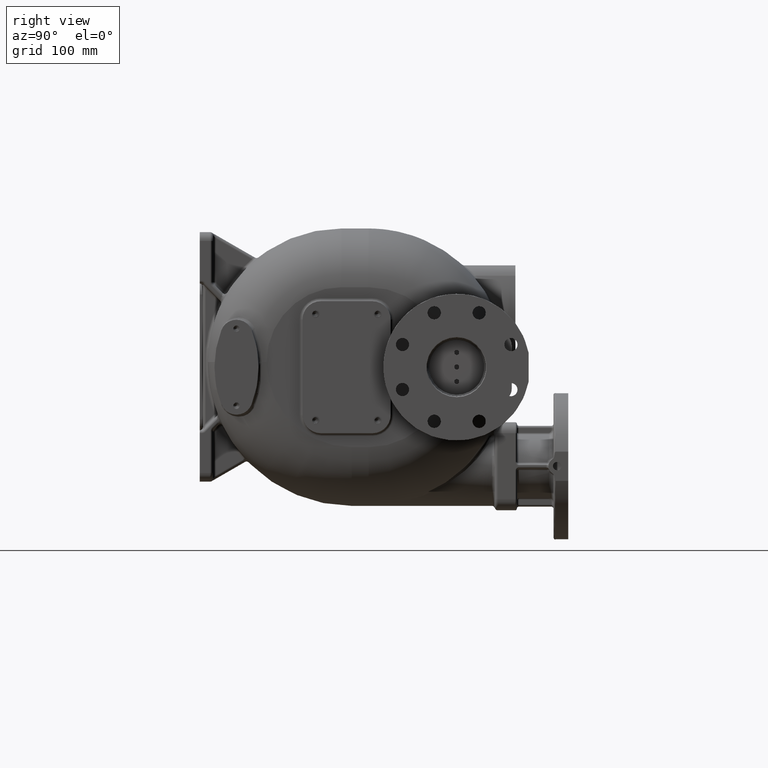
[diagram: clean part render]
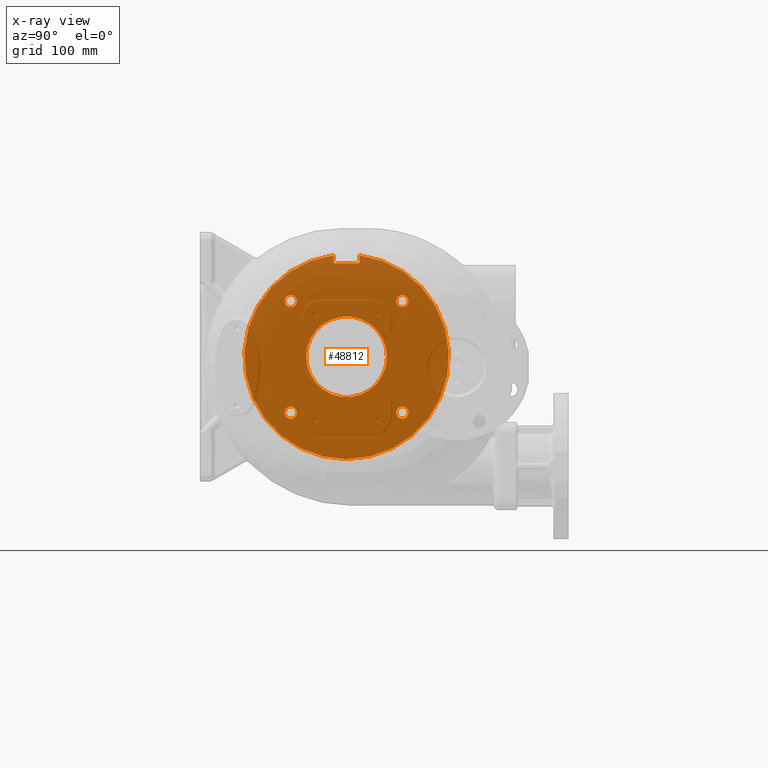
[diagram: x-ray — body ghosted, one internal face saturated and labeled with its STEP entity id]
A machine part, right view, then the same camera in x-ray: the body is ghosted and one INTERNAL B-rep face — a face not visible from any outside direction — is saturated and labeled: STEP entity #48812.
In plain terms, the highlighted planar face has unit normal (-1, 0, 0).
Its self-contained STEP definition (entity closure, byte-faithful):
#117=CARTESIAN_POINT('',(-4.4E1,1.239860210224E2,-7.601397897755E1));
#118=DIRECTION('',(-1.E0,0.E0,0.E0));
#119=DIRECTION('',(0.E0,1.E0,0.E0));
#120=AXIS2_PLACEMENT_3D('',#117,#118,#119);
#122=CARTESIAN_POINT('',(-4.4E1,1.239860210224E2,-7.601397897755E1));
#123=DIRECTION('',(-1.E0,0.E0,0.E0));
#124=DIRECTION('',(0.E0,-1.E0,0.E0));
#125=AXIS2_PLACEMENT_3D('',#122,#123,#124);
#127=CARTESIAN_POINT('',(-4.4E1,1.239860210224E2,7.601397897755E1));
#128=DIRECTION('',(-1.E0,0.E0,0.E0));
#129=DIRECTION('',(0.E0,0.E0,-1.E0));
#130=AXIS2_PLACEMENT_3D('',#127,#128,#129);
#132=CARTESIAN_POINT('',(-4.4E1,1.239860210224E2,7.601397897755E1));
#133=DIRECTION('',(-1.E0,0.E0,0.E0));
#134=DIRECTION('',(0.E0,0.E0,1.E0));
#135=AXIS2_PLACEMENT_3D('',#132,#133,#134);
#137=CARTESIAN_POINT('',(-4.4E1,2.760139789776E2,7.601397897755E1));
#138=DIRECTION('',(-1.E0,0.E0,0.E0));
#139=DIRECTION('',(0.E0,-1.E0,0.E0));
#140=AXIS2_PLACEMENT_3D('',#137,#138,#139);
#142=CARTESIAN_POINT('',(-4.4E1,2.760139789776E2,7.601397897755E1));
#143=DIRECTION('',(-1.E0,0.E0,0.E0));
#144=DIRECTION('',(0.E0,1.E0,0.E0));
#145=AXIS2_PLACEMENT_3D('',#142,#143,#144);
#147=CARTESIAN_POINT('',(-4.4E1,2.760139789776E2,-7.601397897755E1));
#148=DIRECTION('',(-1.E0,0.E0,0.E0));
#149=DIRECTION('',(0.E0,0.E0,1.E0));
#150=AXIS2_PLACEMENT_3D('',#147,#148,#149);
#152=CARTESIAN_POINT('',(-4.4E1,2.760139789776E2,-7.601397897755E1));
#153=DIRECTION('',(-1.E0,0.E0,0.E0));
#154=DIRECTION('',(0.E0,0.E0,-1.E0));
#155=AXIS2_PLACEMENT_3D('',#152,#153,#154);
#198=DIRECTION('',(0.E0,0.E0,-1.E0));
#199=VECTOR('',#198,8.485506485283E0);
#200=CARTESIAN_POINT('',(-4.4E1,2.175E2,1.379855064853E2));
#201=LINE('',#200,#199);
#354=DIRECTION('',(0.E0,0.E0,1.E0));
#355=VECTOR('',#354,8.485506485283E0);
#356=CARTESIAN_POINT('',(-4.4E1,1.825E2,1.295E2));
#357=LINE('',#356,#355);
#403=CARTESIAN_POINT('',(-4.4E1,1.795E2,1.379855064853E2));
#404=DIRECTION('',(-1.E0,0.E0,0.E0));
#405=DIRECTION('',(0.E0,9.906663756214E-1,1.363089586677E-1));
#406=AXIS2_PLACEMENT_3D('',#403,#404,#405);
#408=CARTESIAN_POINT('',(-4.4E1,2.E2,0.E0));
#409=DIRECTION('',(-1.E0,0.E0,0.E0));
#410=DIRECTION('',(0.E0,1.256487517788E-1,9.920747911203E-1));
#411=AXIS2_PLACEMENT_3D('',#408,#409,#410);
#11649=CARTESIAN_POINT('',(-4.4E1,2.E2,0.E0));
#11650=DIRECTION('',(-1.E0,0.E0,0.E0));
#11651=DIRECTION('',(0.E0,-1.E0,0.E0));
#11652=AXIS2_PLACEMENT_3D('',#11649,#11650,#11651);
#11762=CARTESIAN_POINT('',(-4.4E1,2.E2,0.E0));
#11763=DIRECTION('',(1.E0,0.E0,0.E0));
#11764=DIRECTION('',(0.E0,-1.E0,0.E0));
#11765=AXIS2_PLACEMENT_3D('',#11762,#11763,#11764);
#42332=CARTESIAN_POINT('',(-4.4E1,2.205E2,1.379855064853E2));
#42333=DIRECTION('',(1.E0,0.E0,0.E0));
#42334=DIRECTION('',(0.E0,-9.906663756214E-1,1.363089586677E-1));
#42335=AXIS2_PLACEMENT_3D('',#42332,#42333,#42334);
#42341=CARTESIAN_POINT('',(-4.4E1,1.845E2,1.295E2));
#42342=DIRECTION('',(1.E0,0.E0,0.E0));
#42343=DIRECTION('',(0.E0,-1.E0,1.421085471520E-14));
#42344=AXIS2_PLACEMENT_3D('',#42341,#42342,#42343);
#42356=DIRECTION('',(0.E0,-1.E0,0.E0));
#42357=VECTOR('',#42356,3.1E1);
#42358=CARTESIAN_POINT('',(-4.4E1,2.155E2,1.275E2));
#42359=LINE('',#42358,#42357);
#42372=CARTESIAN_POINT('',(-4.4E1,2.155E2,1.295E2));
#42373=DIRECTION('',(1.E0,0.E0,0.E0));
#42374=DIRECTION('',(0.E0,-2.131628207280E-13,-1.E0));
#42375=AXIS2_PLACEMENT_3D('',#42372,#42373,#42374);
#46974=CARTESIAN_POINT('',(-4.4E1,1.45E2,0.E0));
#46976=VERTEX_POINT('',#46974);
#46978=CARTESIAN_POINT('',(-4.4E1,2.55E2,-1.200608190966E-14));
#46980=VERTEX_POINT('',#46978);
#46982=CARTESIAN_POINT('',(-4.4E1,2.175E2,1.379855064853E2));
#46983=CARTESIAN_POINT('',(-4.4E1,2.175E2,1.295E2));
#46984=VERTEX_POINT('',#46982);
#46985=VERTEX_POINT('',#46983);
#46986=CARTESIAN_POINT('',(-4.4E1,2.155E2,1.275E2));
#46987=CARTESIAN_POINT('',(-4.4E1,1.845E2,1.275E2));
#46988=VERTEX_POINT('',#46986);
#46989=VERTEX_POINT('',#46987);
#46990=CARTESIAN_POINT('',(-4.4E1,1.825E2,1.295E2));
#46991=CARTESIAN_POINT('',(-4.4E1,1.825E2,1.379855064853E2));
#46992=VERTEX_POINT('',#46990);
#46993=VERTEX_POINT('',#46991);
#47008=CARTESIAN_POINT('',(-4.4E1,2.175280008731E2,1.383944333613E2));
#47009=VERTEX_POINT('',#47008);
#47010=CARTESIAN_POINT('',(-4.4E1,1.824719991269E2,1.383944333613E2));
#47011=VERTEX_POINT('',#47010);
#47034=CARTESIAN_POINT('',(-4.4E1,1.322360210224E2,-7.601397897755E1));
#47035=CARTESIAN_POINT('',(-4.4E1,1.157360210224E2,-7.601397897755E1));
#47036=VERTEX_POINT('',#47034);
#47037=VERTEX_POINT('',#47035);
#47042=CARTESIAN_POINT('',(-4.4E1,1.239860210224E2,6.776397897755E1));
#47043=VERTEX_POINT('',#47042);
#47044=CARTESIAN_POINT('',(-4.4E1,1.239860210224E2,8.426397897755E1));
#47045=VERTEX_POINT('',#47044);
#47050=CARTESIAN_POINT('',(-4.4E1,2.677639789776E2,7.601397897755E1));
#47051=VERTEX_POINT('',#47050);
#47052=CARTESIAN_POINT('',(-4.4E1,2.842639789776E2,7.601397897755E1));
#47053=VERTEX_POINT('',#47052);
#47058=CARTESIAN_POINT('',(-4.4E1,2.760139789776E2,-6.776397897755E1));
#47059=VERTEX_POINT('',#47058);
#47060=CARTESIAN_POINT('',(-4.4E1,2.760139789776E2,-8.426397897755E1));
#47061=VERTEX_POINT('',#47060);
#48761=CARTESIAN_POINT('',(-4.4E1,2.E2,0.E0));
#48762=DIRECTION('',(-1.E0,0.E0,0.E0));
#48763=DIRECTION('',(0.E0,1.E0,0.E0));
#48764=AXIS2_PLACEMENT_3D('',#48761,#48762,#48763);
#48765=PLANE('',#48764);
#48767=ORIENTED_EDGE('',*,*,#48766,.T.);
#48769=ORIENTED_EDGE('',*,*,#48768,.F.);
#48771=ORIENTED_EDGE('',*,*,#48770,.T.);
#48773=ORIENTED_EDGE('',*,*,#48772,.F.);
#48775=ORIENTED_EDGE('',*,*,#48774,.T.);
#48777=ORIENTED_EDGE('',*,*,#48776,.F.);
#48779=ORIENTED_EDGE('',*,*,#48778,.F.);
#48781=ORIENTED_EDGE('',*,*,#48780,.T.);
#48782=EDGE_LOOP('',(#48767,#48769,#48771,#48773,#48775,#48777,#48779,#48781));
#48783=FACE_OUTER_BOUND('',#48782,.F.);
#48785=ORIENTED_EDGE('',*,*,#48784,.T.);
#48787=ORIENTED_EDGE('',*,*,#48786,.F.);
#48788=EDGE_LOOP('',(#48785,#48787));
#48789=FACE_BOUND('',#48788,.F.);
#48791=ORIENTED_EDGE('',*,*,#48790,.T.);
#48793=ORIENTED_EDGE('',*,*,#48792,.T.);
#48794=EDGE_LOOP('',(#48791,#48793));
#48795=FACE_BOUND('',#48794,.F.);
#48797=ORIENTED_EDGE('',*,*,#48796,.T.);
#48799=ORIENTED_EDGE('',*,*,#48798,.T.);
#48800=EDGE_LOOP('',(#48797,#48799));
#48801=FACE_BOUND('',#48800,.F.);
#48803=ORIENTED_EDGE('',*,*,#48802,.T.);
#48805=ORIENTED_EDGE('',*,*,#48804,.T.);
#48806=EDGE_LOOP('',(#48803,#48805));
#48807=FACE_BOUND('',#48806,.F.);
#48808=ORIENTED_EDGE('',*,*,#48743,.T.);
#48809=ORIENTED_EDGE('',*,*,#48754,.T.);
#48810=EDGE_LOOP('',(#48808,#48809));
#48811=FACE_BOUND('',#48810,.F.);
#48812=ADVANCED_FACE('',(#48783,#48789,#48795,#48801,#48807,#48811),#48765,.T.);
#121=CIRCLE('',#120,8.25E0);
#126=CIRCLE('',#125,8.25E0);
#131=CIRCLE('',#130,8.25E0);
#136=CIRCLE('',#135,8.25E0);
#141=CIRCLE('',#140,8.25E0);
#146=CIRCLE('',#145,8.25E0);
#151=CIRCLE('',#150,8.25E0);
#156=CIRCLE('',#155,8.25E0);
#407=CIRCLE('',#406,3.E0);
#412=CIRCLE('',#411,1.395E2);
#11653=CIRCLE('',#11652,5.5E1);
#11766=CIRCLE('',#11765,5.5E1);
#42336=CIRCLE('',#42335,3.E0);
#42345=CIRCLE('',#42344,2.E0);
#42376=CIRCLE('',#42375,2.E0);
#48743=EDGE_CURVE('',#47059,#47061,#151,.T.);
#48754=EDGE_CURVE('',#47061,#47059,#156,.T.);
#48766=EDGE_CURVE('',#46984,#46985,#201,.T.);
#48768=EDGE_CURVE('',#46988,#46985,#42376,.T.);
#48770=EDGE_CURVE('',#46988,#46989,#42359,.T.);
#48772=EDGE_CURVE('',#46992,#46989,#42345,.T.);
#48774=EDGE_CURVE('',#46992,#46993,#357,.T.);
#48776=EDGE_CURVE('',#47011,#46993,#407,.T.);
#48778=EDGE_CURVE('',#47009,#47011,#412,.T.);
#48780=EDGE_CURVE('',#47009,#46984,#42336,.T.);
#48784=EDGE_CURVE('',#46976,#46980,#11653,.T.);
#48786=EDGE_CURVE('',#46976,#46980,#11766,.T.);
#48790=EDGE_CURVE('',#47036,#47037,#121,.T.);
#48792=EDGE_CURVE('',#47037,#47036,#126,.T.);
#48796=EDGE_CURVE('',#47043,#47045,#131,.T.);
#48798=EDGE_CURVE('',#47045,#47043,#136,.T.);
#48802=EDGE_CURVE('',#47051,#47053,#141,.T.);
#48804=EDGE_CURVE('',#47053,#47051,#146,.T.);